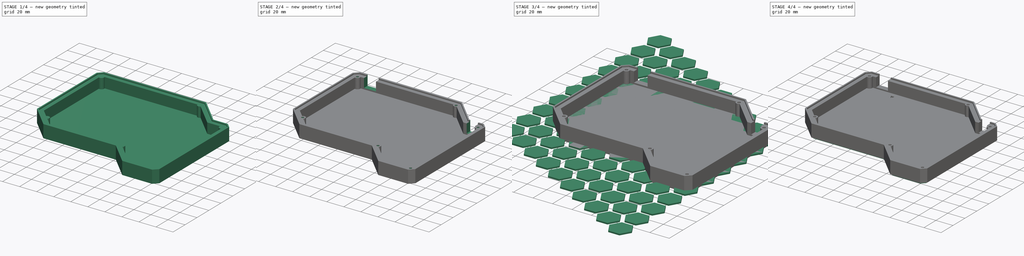
[diagram: build sequence overview — one tinted view per stage of 4, left to right]
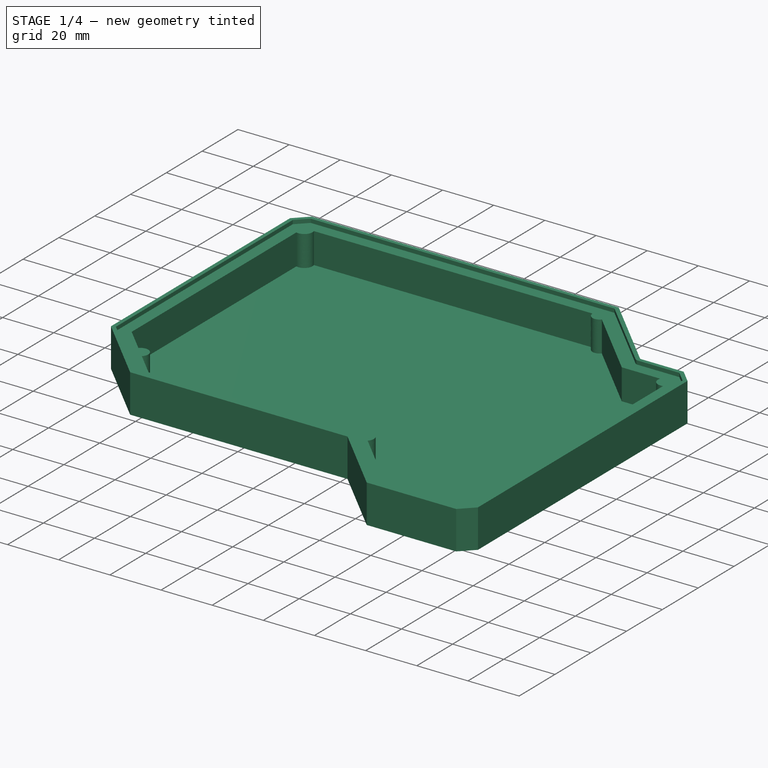
[diagram: stage 1 of 4 — iso view after this stage's code; geometry added in this stage tinted green]
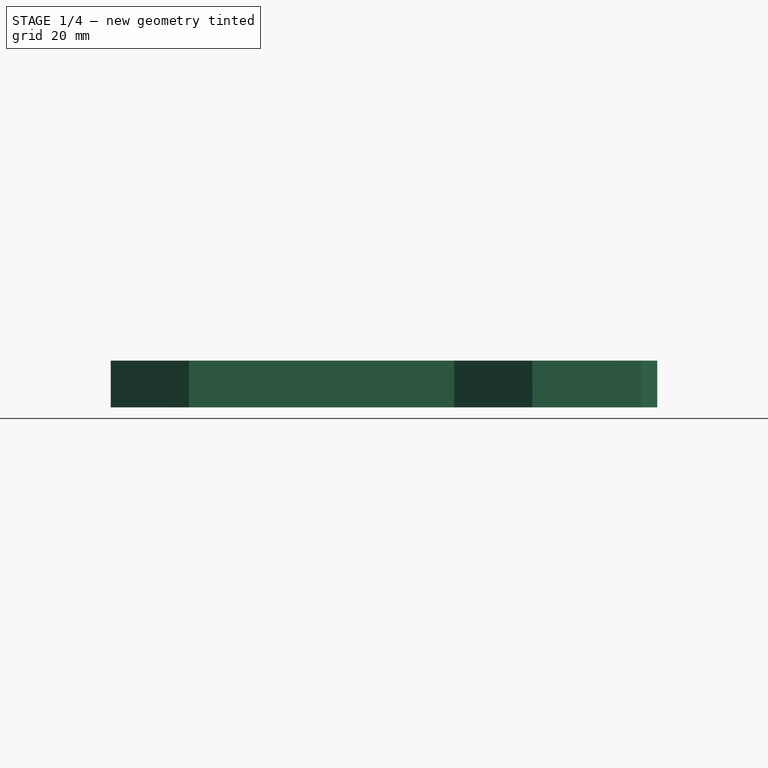
[diagram: stage 1 of 4 — front view after this stage's code; geometry added in this stage tinted green]
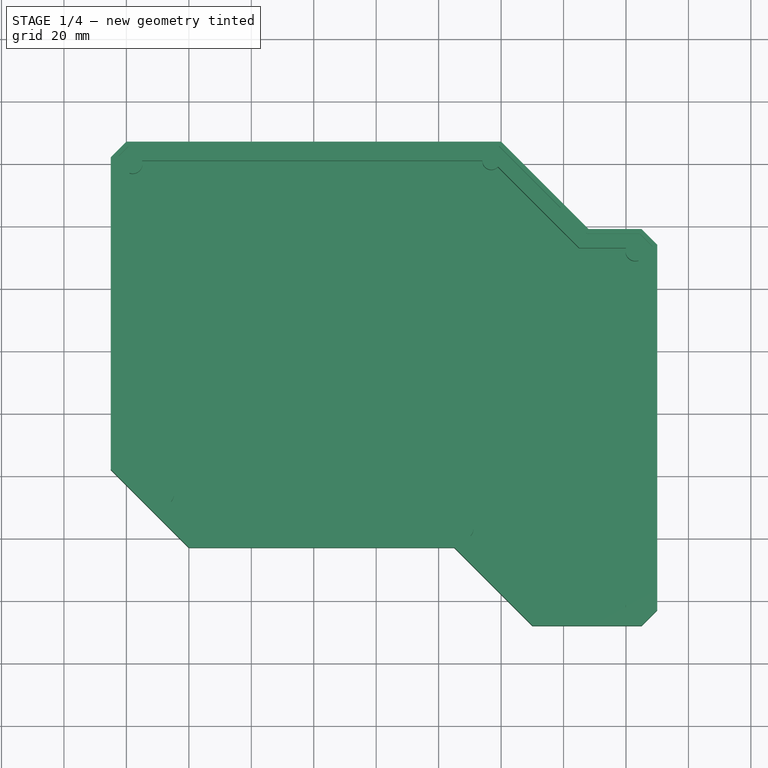
[diagram: stage 1 of 4 — top view after this stage's code; geometry added in this stage tinted green]
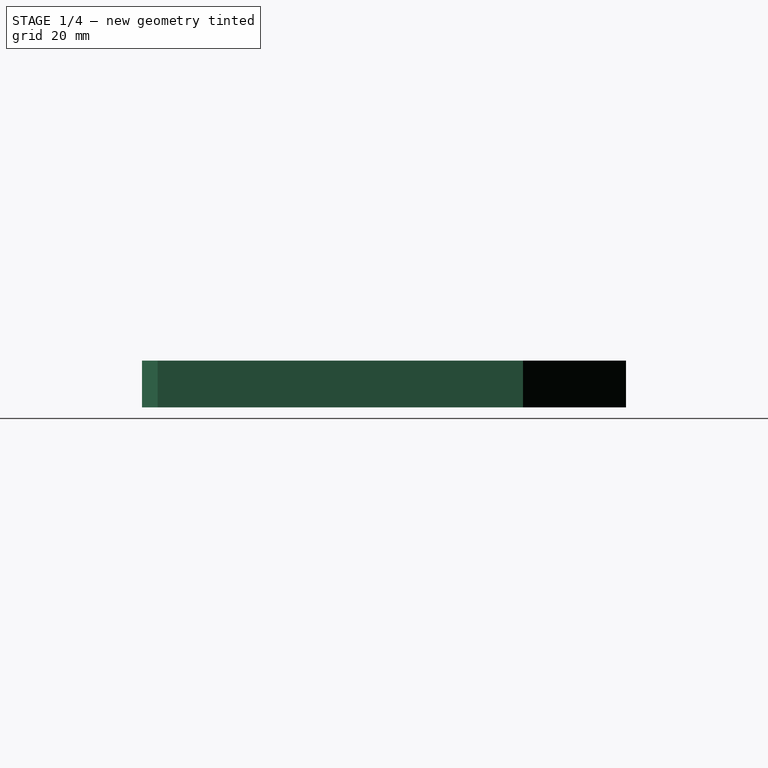
[diagram: stage 1 of 4 — right view after this stage's code; geometry added in this stage tinted green]
FCSTD DOCUMENT  (FreeCAD 0.19R24276 (Git))
Label: revB
License: All rights reserved
LicenseURL: http://en.wikipedia.org/wiki/All_rights_reserved
objects: Sketcher::SketchObject×11, PartDesign::Pocket×7, PartDesign::Pad×3, PartDesign::Body×2, App::Part×2, Part::Extrusion×2, App::DocumentObjectGroup×1, PartDesign::Thickness×1, Part::FeaturePython×1, Part::Cut×1
note: 38 computed .brp shape members not serialized (recipe doc carries the construction recipe); baked Part::Feature solids carry a one-line shape summary decoded from their .brp

FEATURE [PartDesign::Body] Body
  Group = -> [Sketch,Pad,Sketch001,Pocket,Sketch002,Pocket001]
  Origin = -> Origin
  Tip = -> Pocket001
FEATURE [App::Part] Part  label="plate"
  Group = -> [Body]
  Origin = -> Origin001
FEATURE [PartDesign::Pad] Pad001
  Direction = (1,1,1)
  Length = 15
  Length2 = 100
  Profile = -> Sketch003
  Type = 0
FEATURE [PartDesign::Thickness] Thickness
  Base = -> Pad001 [Face14]
  BaseFeature = -> Pad001
  Intersection = false
  Join = 0
  Mode = 0
  Reversed = true
  SupportTransform = false
  Value = 1.5
FEATURE [PartDesign::Pad] Pad002
  BaseFeature = -> Thickness
  Direction = (1,1,1)
  Length = 13.5
  Length2 = 100
  Profile = -> Sketch003
  Type = 0
FEATURE [Sketcher::SketchObject] Sketch004  label="Sketch-inner"
  FullyConstrained = false
  MapMode = 5
  Placement = pos=(0,0,13.5) rot=(0,0,1;0rad)
  Support = -> [Pad002]
  sketch-geometry (16):
    g0: BSplineCurve PolesCount=2 KnotsCount=2 Degree=1 IsPeriodic=0
    g1: BSplineCurve PolesCount=2 KnotsCount=2 Degree=1 IsPeriodic=0
    g2: BSplineCurve PolesCount=2 KnotsCount=2 Degree=1 IsPeriodic=0
    g3: BSplineCurve PolesCount=2 KnotsCount=2 Degree=1 IsPeriodic=0
    g4: BSplineCurve PolesCount=2 KnotsCount=2 Degree=1 IsPeriodic=0
    g5: BSplineCurve PolesCount=2 KnotsCount=2 Degree=1 IsPeriodic=0
    g6: BSplineCurve PolesCount=2 KnotsCount=2 Degree=1 IsPeriodic=0
    g7: BSplineCurve PolesCount=2 KnotsCount=2 Degree=1 IsPeriodic=0
    g8: BSplineCurve PolesCount=2 KnotsCount=2 Degree=1 IsPeriodic=0
    g9: BSplineCurve PolesCount=2 KnotsCount=2 Degree=1 IsPeriodic=0
    g10: BSplineCurve PolesCount=3 KnotsCount=2 Degree=2 IsPeriodic=0
    g11: BSplineCurve PolesCount=3 KnotsCount=2 Degree=2 IsPeriodic=0
    g12: BSplineCurve PolesCount=5 KnotsCount=3 Degree=2 IsPeriodic=0
    g13: BSplineCurve PolesCount=5 KnotsCount=3 Degree=2 IsPeriodic=0
    g14: BSplineCurve PolesCount=3 KnotsCount=2 Degree=2 IsPeriodic=0
    g15: BSplineCurve PolesCount=3 KnotsCount=2 Degree=2 IsPeriodic=0
  constraints (16):
    c: Coincident(g0,g1)
    c: Coincident(g2,g3)
    c: Coincident(g6,g7)
    c: Coincident(g8,g9)
    c: Coincident(g14,g1)
    c: Coincident(g14,g5)
    c: Coincident(g11,g5)
    c: Coincident(g2,g11)
    c: Coincident(g15,g3)
    c: Coincident(g15,g4)
    c: Coincident(g10,g4)
    c: Coincident(g10,g6)
    c: Coincident(g7,g13)
    c: Coincident(g13,g9)
    c: Coincident(g8,g12)
    c: Coincident(g0,g12)
FEATURE [PartDesign::Pocket] Pocket002
  BaseFeature = -> Pad002
  Length = 12
  Length2 = 100
  Profile = -> Sketch004
  Type = 0
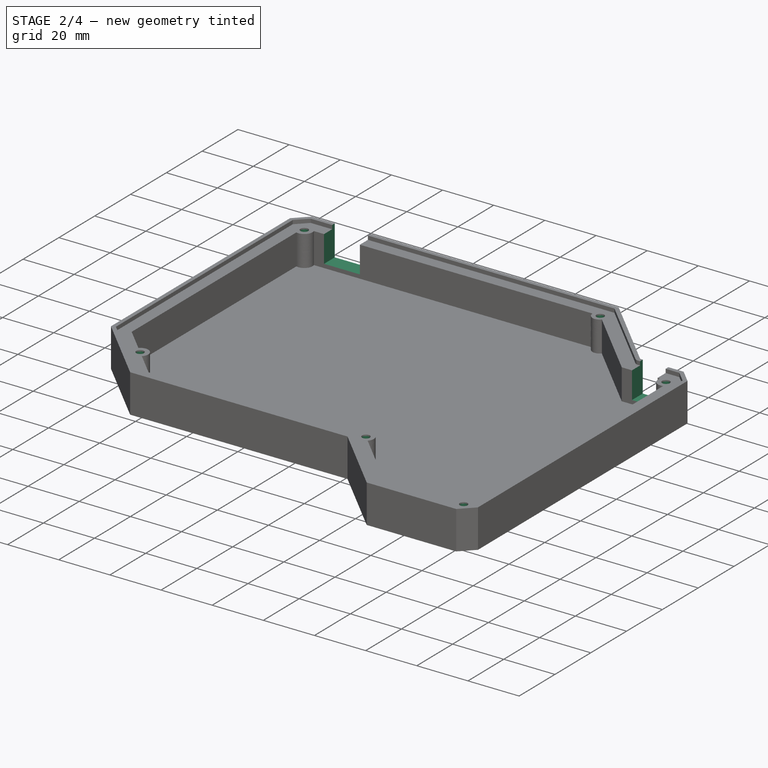
[diagram: stage 2 of 4 — iso view after this stage's code; geometry added in this stage tinted green]
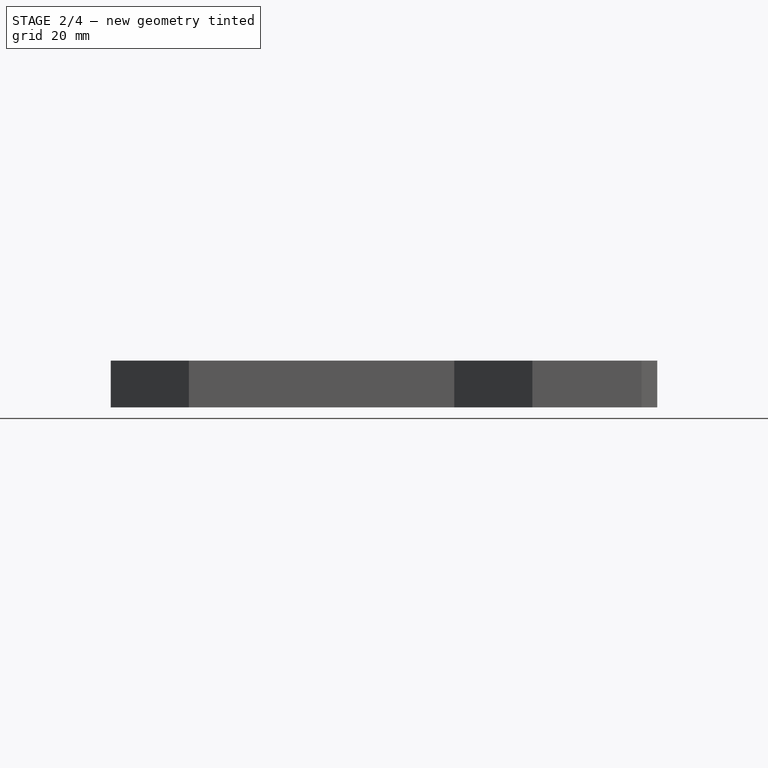
[diagram: stage 2 of 4 — front view after this stage's code; geometry added in this stage tinted green]
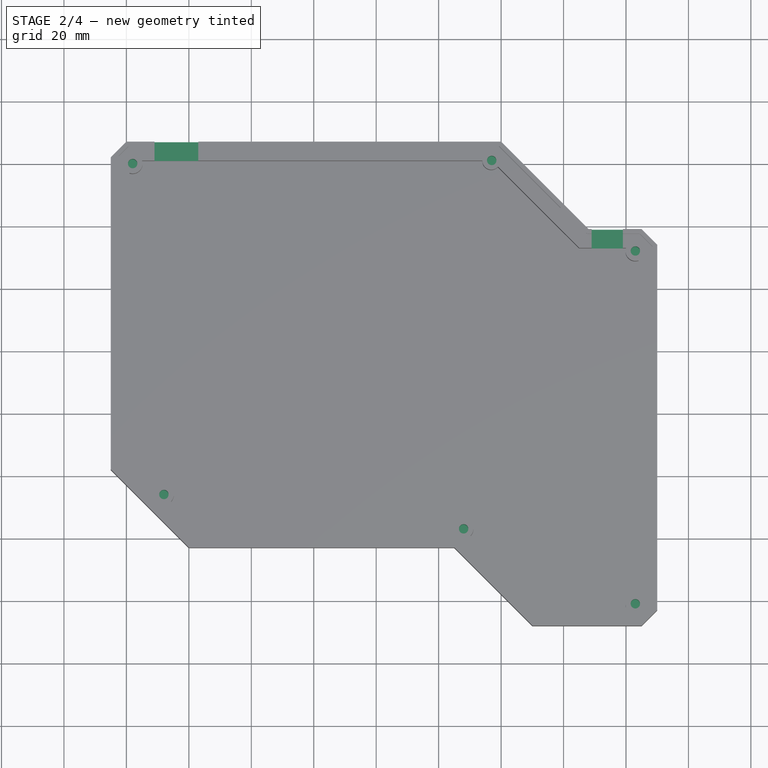
[diagram: stage 2 of 4 — top view after this stage's code; geometry added in this stage tinted green]
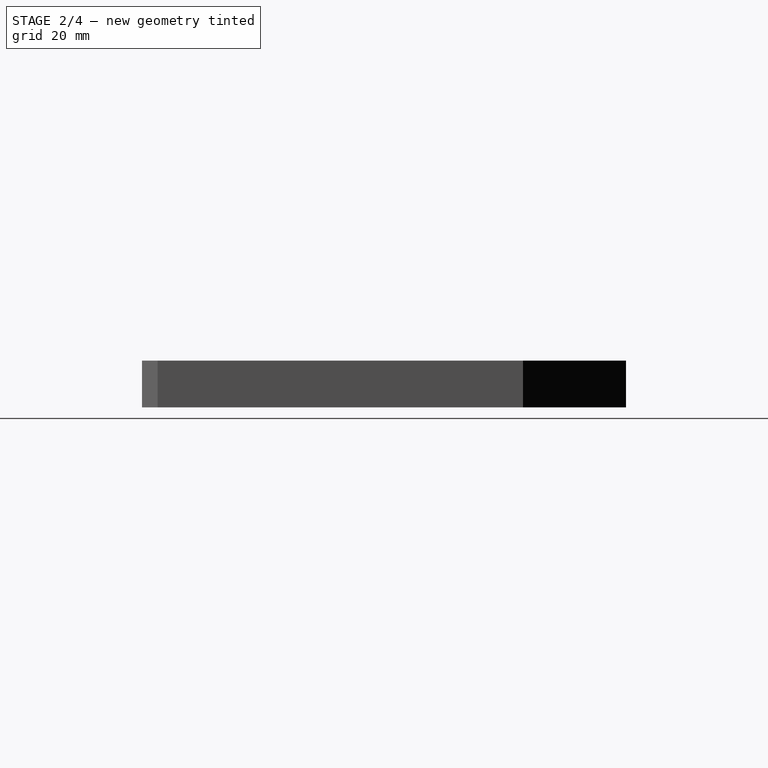
[diagram: stage 2 of 4 — right view after this stage's code; geometry added in this stage tinted green]
FEATURE [Sketcher::SketchObject] Sketch005  label="Sketch-case_sc_hole"
  FullyConstrained = false
  MapMode = 5
  Placement = pos=(0,0,13.5) rot=(0,0,1;0rad)
  Support = -> [Pad002]
  sketch-geometry (6):
    g0: BSplineCurve PolesCount=7 KnotsCount=4 Degree=2 IsPeriodic=0
    g1: BSplineCurve PolesCount=7 KnotsCount=4 Degree=2 IsPeriodic=0
    g2: BSplineCurve PolesCount=7 KnotsCount=4 Degree=2 IsPeriodic=0
    g3: BSplineCurve PolesCount=7 KnotsCount=4 Degree=2 IsPeriodic=0
    g4: BSplineCurve PolesCount=7 KnotsCount=4 Degree=2 IsPeriodic=0
    g5: BSplineCurve PolesCount=7 KnotsCount=4 Degree=2 IsPeriodic=0
FEATURE [PartDesign::Pocket] Pocket003
  BaseFeature = -> Pocket002
  Length = 8
  Length2 = 100
  Profile = -> Sketch005
  Type = 0
FEATURE [Sketcher::SketchObject] Sketch006  label="Sketch-promicro_hole"
  FullyConstrained = false
  Placement = pos=(0,-12,0) rot=(-1,0,0;1.5708rad)
  sketch-geometry (4):
    g0: LineSegment StartX=29 StartY=-3 StartZ=0 EndX=43 EndY=-3 EndZ=0
    g1: LineSegment StartX=43 StartY=-3 StartZ=0 EndX=43 EndY=-15 EndZ=0
    g2: LineSegment StartX=43 StartY=-15 StartZ=0 EndX=29 EndY=-15 EndZ=0
    g3: LineSegment StartX=29 StartY=-15 StartZ=0 EndX=29 EndY=-3 EndZ=0
  constraints (8):
    c: Coincident(g0,g1)
    c: Coincident(g1,g2)
    c: Coincident(g2,g3)
    c: Coincident(g3,g0)
    c: Horizontal(g0)
    c: Horizontal(g2)
    c: Vertical(g1)
    c: Vertical(g3)
FEATURE [PartDesign::Pocket] Pocket004
  BaseFeature = -> Pocket003
  Length = 10
  Length2 = 100
  Profile = -> Sketch006
  Type = 0
FEATURE [Sketcher::SketchObject] Sketch007  label="Sketch-trrs_hole"
  FullyConstrained = false
  Placement = pos=(0,-40,0) rot=(-1,0,0;1.5708rad)
  sketch-geometry (4):
    g0: LineSegment StartX=169 StartY=-3 StartZ=0 EndX=179 EndY=-3 EndZ=0
    g1: LineSegment StartX=179 StartY=-3 StartZ=0 EndX=179 EndY=-15 EndZ=0
    g2: LineSegment StartX=179 StartY=-15 StartZ=0 EndX=169 EndY=-15 EndZ=0
    g3: LineSegment StartX=169 StartY=-15 StartZ=0 EndX=169 EndY=-3 EndZ=0
  constraints (8):
    c: Coincident(g0,g1)
    c: Coincident(g1,g2)
    c: Coincident(g2,g3)
    c: Coincident(g3,g0)
    c: Horizontal(g0)
    c: Horizontal(g2)
    c: Vertical(g1)
    c: Vertical(g3)
FEATURE [PartDesign::Pocket] Pocket005
  BaseFeature = -> Pocket004
  Length = 10
  Length2 = 100
  Profile = -> Sketch007
  Type = 0
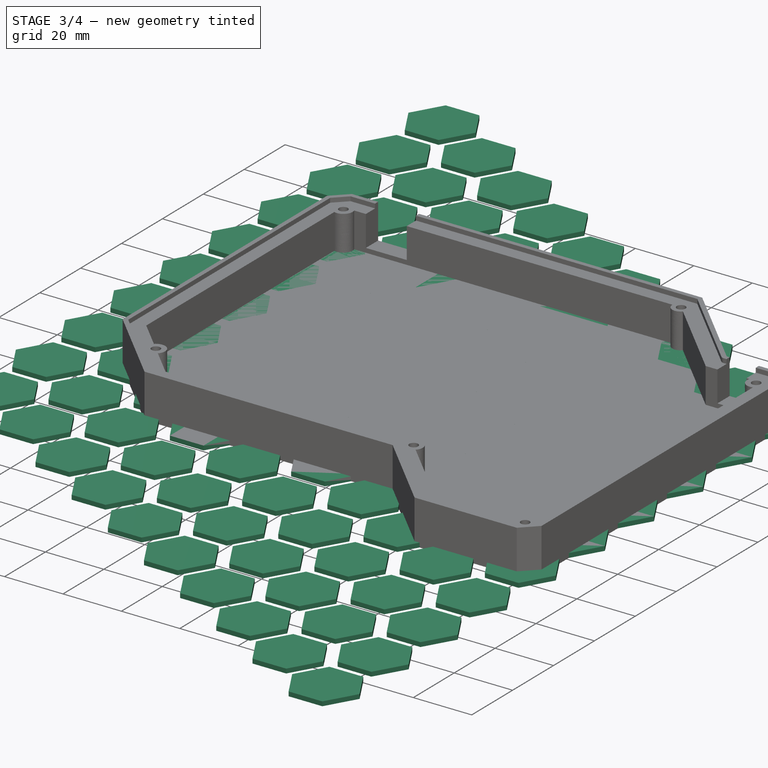
[diagram: stage 3 of 4 — iso view after this stage's code; geometry added in this stage tinted green]
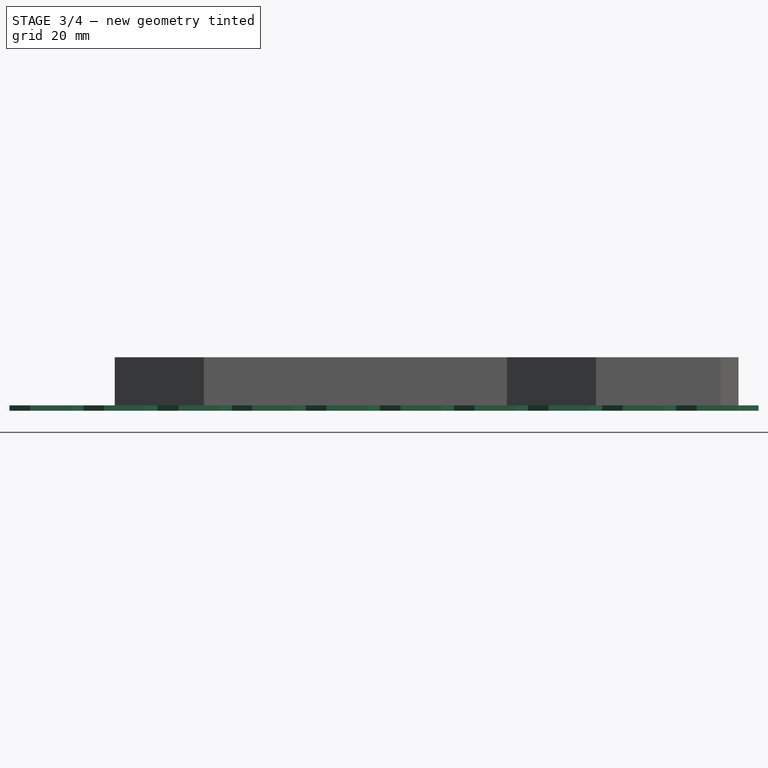
[diagram: stage 3 of 4 — front view after this stage's code; geometry added in this stage tinted green]
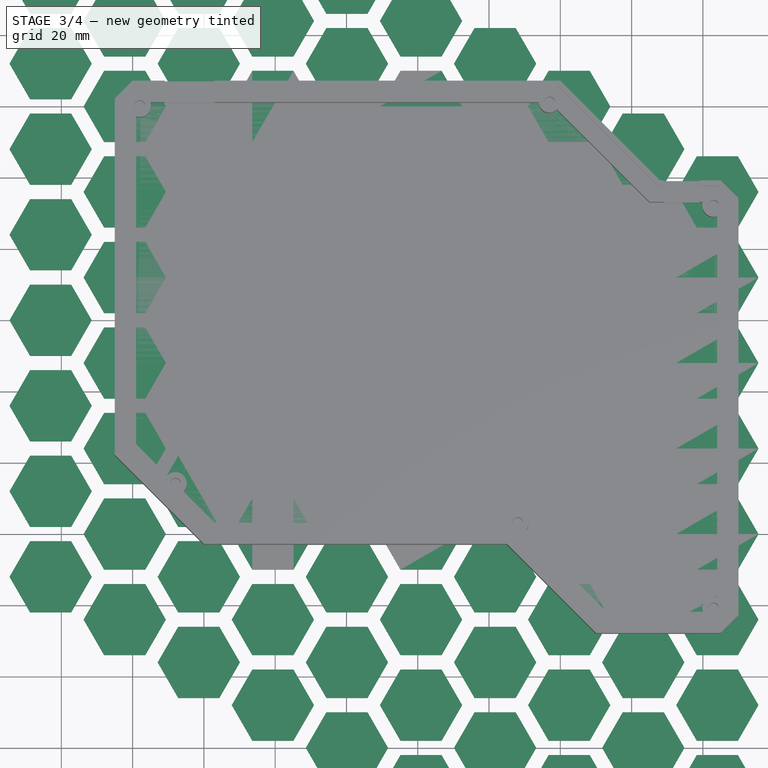
[diagram: stage 3 of 4 — top view after this stage's code; geometry added in this stage tinted green]
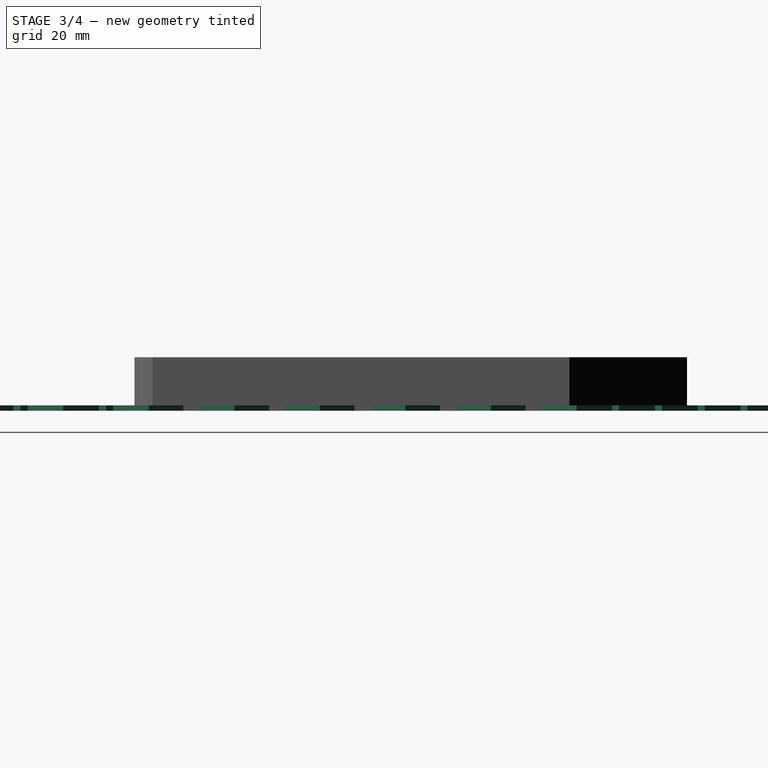
[diagram: stage 3 of 4 — right view after this stage's code; geometry added in this stage tinted green]
FEATURE [Sketcher::SketchObject] Sketch009  label="Sketch-outer001"
  FullyConstrained = false
  MapMode = 5
  sketch-geometry (12):
    g0: BSplineCurve PolesCount=2 KnotsCount=2 Degree=1 IsPeriodic=0
    g1: BSplineCurve PolesCount=2 KnotsCount=2 Degree=1 IsPeriodic=0
    g2: BSplineCurve PolesCount=2 KnotsCount=2 Degree=1 IsPeriodic=0
    g3: BSplineCurve PolesCount=2 KnotsCount=2 Degree=1 IsPeriodic=0
    g4: BSplineCurve PolesCount=2 KnotsCount=2 Degree=1 IsPeriodic=0
    g5: BSplineCurve PolesCount=2 KnotsCount=2 Degree=1 IsPeriodic=0
    g6: BSplineCurve PolesCount=2 KnotsCount=2 Degree=1 IsPeriodic=0
    g7: BSplineCurve PolesCount=2 KnotsCount=2 Degree=1 IsPeriodic=0
    g8: BSplineCurve PolesCount=2 KnotsCount=2 Degree=1 IsPeriodic=0
    g9: BSplineCurve PolesCount=2 KnotsCount=2 Degree=1 IsPeriodic=0
    g10: BSplineCurve PolesCount=2 KnotsCount=2 Degree=1 IsPeriodic=0
    g11: BSplineCurve PolesCount=2 KnotsCount=2 Degree=1 IsPeriodic=0
  constraints (12):
    c: Coincident(g0,g1)
    c: Coincident(g1,g2)
    c: Coincident(g2,g3)
    c: Coincident(g3,g4)
    c: Coincident(g4,g5)
    c: Coincident(g5,g6)
    c: Coincident(g6,g7)
    c: Coincident(g7,g8)
    c: Coincident(g8,g9)
    c: Coincident(g9,g10)
    c: Coincident(g10,g11)
    c: Coincident(g11,g0)
FEATURE [Part::Extrusion] Extrude
  Base = -> Sketch009
  Dir = (0,0,1)
  DirMode = 2
  FaceMakerClass = Part::FaceMakerBullseye
  LengthFwd = 1.5
  LengthRev = 0
  Solid = true
  Symmetric = false
FEATURE [Sketcher::SketchObject] Sketch010  label="Sketch-hex"
  FullyConstrained = false
  MapMode = 5
  sketch-geometry (6):
    g0: LineSegment StartX=5.7735 StartY=-10 StartZ=0 EndX=11.547 EndY=-1.8e-15 EndZ=0
    g1: LineSegment StartX=11.547 StartY=-1.8e-15 StartZ=0 EndX=5.7735 EndY=10 EndZ=0
    g2: LineSegment StartX=5.7735 StartY=10 StartZ=0 EndX=-5.7735 EndY=10 EndZ=0
    g3: LineSegment StartX=-5.7735 StartY=10 StartZ=0 EndX=-11.547 EndY=0 EndZ=0
    g4: LineSegment StartX=-11.547 StartY=0 StartZ=0 EndX=-5.7735 EndY=-10 EndZ=0
    g5: LineSegment StartX=-5.7735 StartY=-10 StartZ=0 EndX=5.7735 EndY=-10 EndZ=0
  constraints (9):
    c: Coincident(g0,g1)
    c: Coincident(g1,g2)
    c: Coincident(g2,g3)
    c: Coincident(g3,g4)
    c: Coincident(g4,g5)
    c: Coincident(g5,g0)
    c: Equal(g0, g1-g5) x5
    c: Horizontal(g2)
    c: Distance(g-1,g5) = 10
FEATURE [Part::FeaturePython] Array001  # Draft array (typed FeaturePython)
  Angle = 360
  ArrayType = 0
  Axis = (0,0,1)
  Base = -> Sketch010
  Center = (0,0,0)
  Count = 100
  ExpandArray = false
  Fuse = false
  IntervalAxis = (0,0,0)
  IntervalX = (20.7845,-12,0)
  IntervalY = (0,24,0)
  IntervalZ = (0,0,100)
  NumberCircles = 3
  NumberPolar = 5
  NumberX = 10
  NumberY = 10
  NumberZ = 1
  Placement = pos=(-3,-152,0) rot=(0,0,1;0rad)
  PlacementList = 100 placements: [(0,0,0),(0,24,0),(0,48,0),(0,72,0),(0,96,0),(0,120,0),(0,144,0),(0,168,0),(0,192,0),(0,216,0),(20.7845,-12,0),(20.7845,12,0),(20.7845,36,0),(20.7845,60,0),(20.7845,84,0),(20.7845,108,0),(20.7845,132,0),(20.7845,156,0),(20.7845,180,0),(20.7845,204,0),(41.569,-24,0),(41.569,0,0),(41.569,24,0),(41.569,48,0),(41.569,72,0),(41.569,96,0),(41.569,120,0),(41.569,144,0),(41.569,168,0),(41.569,192,0),+70 more]
  RadialDistance = 50
  ScaleList = (100) [(1,1,1),(1,1,1),(1,1,1),(1,1,1),(1,1,1),(1,1,1),(1,1,1),(1,1,1),(1,1,1),(1,1,1),(1,1,1),(1,1,1),(1,1,1),(1,1,1),(1,1,1),(1,1,1),(1,1,1),(1,1,1),+82 more]
  Symmetry = 1
  TangentialDistance = 25
FEATURE [Part::Extrusion] Extrude001
  Base = -> Array001
  Dir = (0,0,1)
  DirMode = 2
  FaceMakerClass = Part::FaceMakerBullseye
  LengthFwd = 1.5
  LengthRev = 0
  Solid = true
  Symmetric = false
FEATURE [Sketcher::SketchObject] Sketch011  label="Sketch-reset_hole"
  FullyConstrained = false
  MapMode = 5
  Placement = pos=(0,0,0) rot=(1,0,0;3.14159rad)
  Support = -> [Pocket005]
  sketch-geometry (4):
    g0: LineSegment StartX=48 StartY=24 StartZ=0 EndX=54 EndY=24 EndZ=0
    g1: LineSegment StartX=54 StartY=24 StartZ=0 EndX=54 EndY=28 EndZ=0
    g2: LineSegment StartX=54 StartY=28 StartZ=0 EndX=48 EndY=28 EndZ=0
    g3: LineSegment StartX=48 StartY=28 StartZ=0 EndX=48 EndY=24 EndZ=0
  constraints (8):
    c: Coincident(g0,g1)
    c: Coincident(g1,g2)
    c: Coincident(g2,g3)
    c: Coincident(g3,g0)
    c: Horizontal(g0)
    c: Horizontal(g2)
    c: Vertical(g1)
    c: Vertical(g3)
FEATURE [PartDesign::Pocket] Pocket006
  BaseFeature = -> Pocket005
  Length = 5
  Length2 = 100
  Profile = -> Sketch011
  Type = 1
FEATURE [PartDesign::Body] Body001
  Group = -> [Sketch003,Pad001,Thickness,Pad002,Sketch004,Pocket002,Sketch005,Pocket003,Sketch006,Pocket004,Sketch007,Pocket005,Sketch011,Pocket006]
  Origin = -> Origin003
  Tip = -> Pocket006
FEATURE [App::Part] Part001  label="case"
  Group = -> [Body001,Sketch009,Extrude,Sketch010,Array001,Extrude001,Cut]
  Origin = -> Origin002
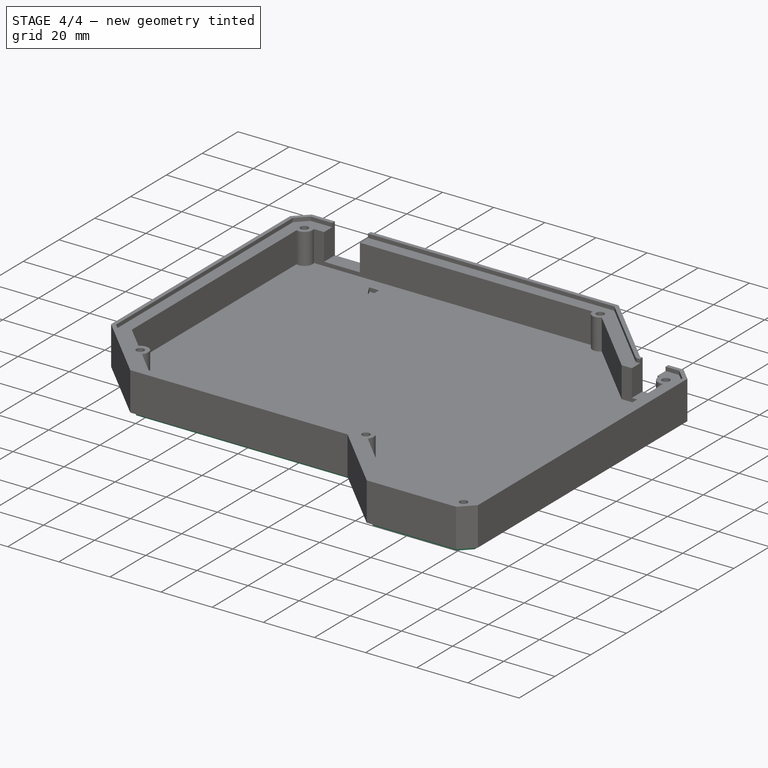
[diagram: stage 4 of 4 — iso view after this stage's code; geometry added in this stage tinted green]
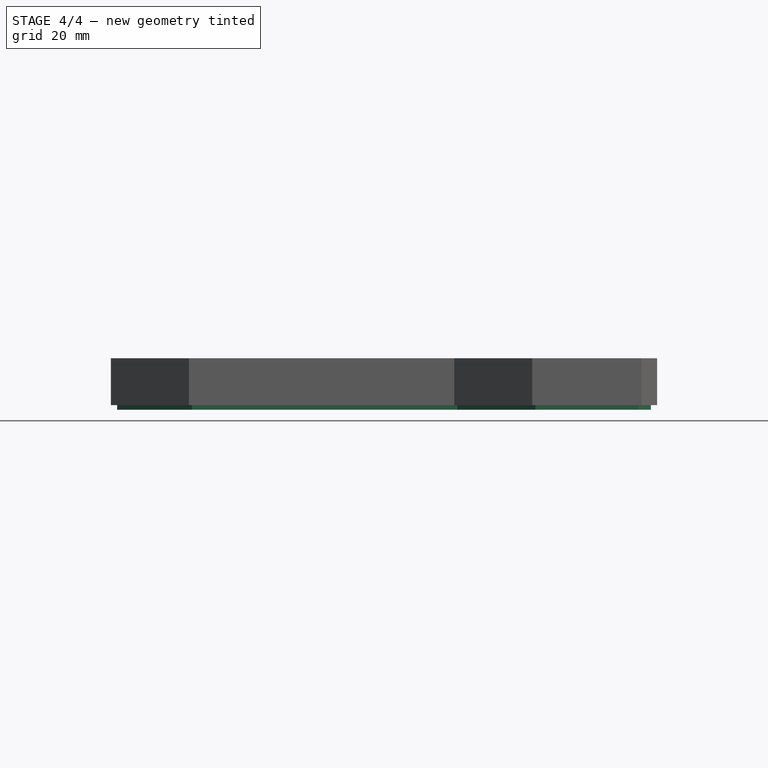
[diagram: stage 4 of 4 — front view after this stage's code; geometry added in this stage tinted green]
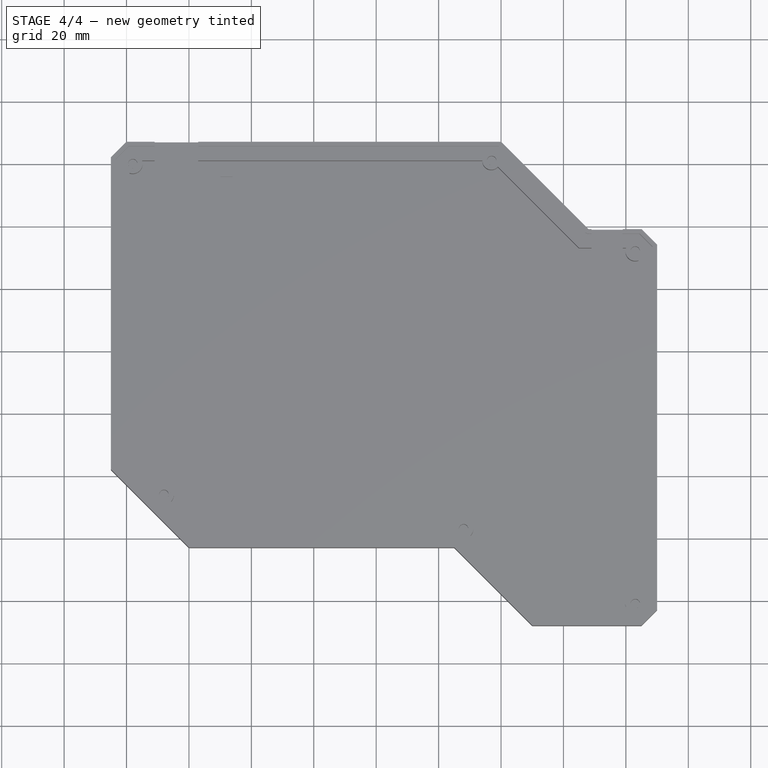
[diagram: stage 4 of 4 — top view after this stage's code; geometry added in this stage tinted green]
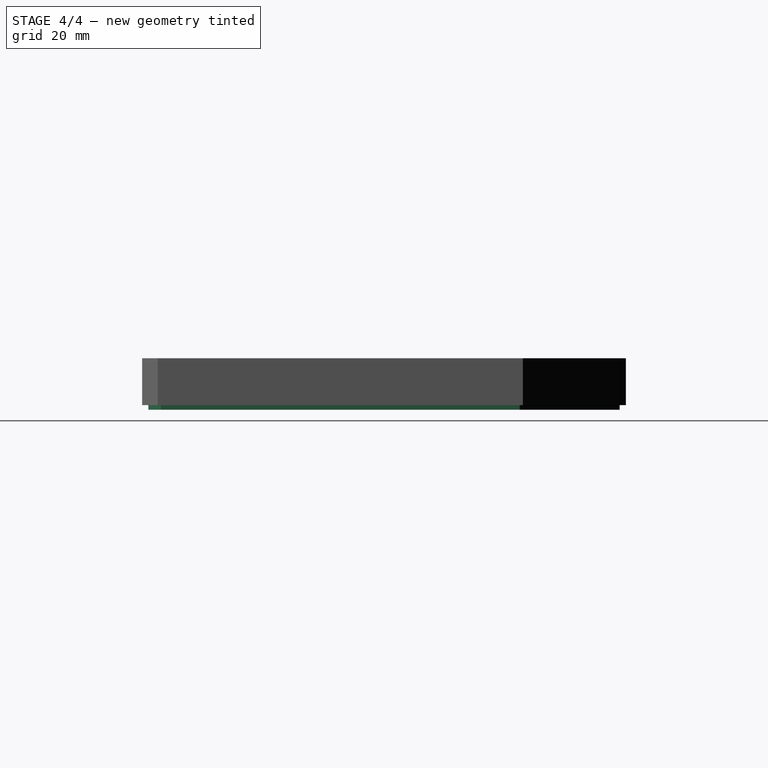
[diagram: stage 4 of 4 — right view after this stage's code; geometry added in this stage tinted green]
FEATURE [App::DocumentObjectGroup] ____________  label="svg"
FEATURE [Sketcher::SketchObject] Sketch  label="Sketch-plate"
  FullyConstrained = false
  sketch-geometry (12):
    g0: BSplineCurve PolesCount=2 KnotsCount=2 Degree=1 IsPeriodic=0
    g1: BSplineCurve PolesCount=2 KnotsCount=2 Degree=1 IsPeriodic=0
    g2: BSplineCurve PolesCount=2 KnotsCount=2 Degree=1 IsPeriodic=0
    g3: BSplineCurve PolesCount=2 KnotsCount=2 Degree=1 IsPeriodic=0
    g4: BSplineCurve PolesCount=2 KnotsCount=2 Degree=1 IsPeriodic=0
    g5: BSplineCurve PolesCount=2 KnotsCount=2 Degree=1 IsPeriodic=0
    g6: BSplineCurve PolesCount=2 KnotsCount=2 Degree=1 IsPeriodic=0
    g7: BSplineCurve PolesCount=2 KnotsCount=2 Degree=1 IsPeriodic=0
    g8: BSplineCurve PolesCount=2 KnotsCount=2 Degree=1 IsPeriodic=0
    g9: BSplineCurve PolesCount=2 KnotsCount=2 Degree=1 IsPeriodic=0
    g10: BSplineCurve PolesCount=2 KnotsCount=2 Degree=1 IsPeriodic=0
    g11: BSplineCurve PolesCount=2 KnotsCount=2 Degree=1 IsPeriodic=0
  constraints (12):
    c: Coincident(g0,g1)
    c: Coincident(g1,g2)
    c: Coincident(g2,g3)
    c: Coincident(g3,g4)
    c: Coincident(g4,g5)
    c: Coincident(g5,g6)
    c: Coincident(g6,g7)
    c: Coincident(g7,g8)
    c: Coincident(g8,g9)
    c: Coincident(g9,g10)
    c: Coincident(g10,g11)
    c: Coincident(g11,g0)
FEATURE [Sketcher::SketchObject] Sketch001  label="Sketch-sw_hole"
  FullyConstrained = false
  sketch-geometry (116):
    g0: BSplineCurve PolesCount=2 KnotsCount=2 Degree=1 IsPeriodic=0
    g1: BSplineCurve PolesCount=2 KnotsCount=2 Degree=1 IsPeriodic=0
    g2: BSplineCurve PolesCount=2 KnotsCount=2 Degree=1 IsPeriodic=0
    g3: BSplineCurve PolesCount=2 KnotsCount=2 Degree=1 IsPeriodic=0
    g4: BSplineCurve PolesCount=2 KnotsCount=2 Degree=1 IsPeriodic=0
    g5: BSplineCurve PolesCount=2 KnotsCount=2 Degree=1 IsPeriodic=0
    g6: BSplineCurve PolesCount=2 KnotsCount=2 Degree=1 IsPeriodic=0
    g7: BSplineCurve PolesCount=2 KnotsCount=2 Degree=1 IsPeriodic=0
    g8: BSplineCurve PolesCount=2 KnotsCount=2 Degree=1 IsPeriodic=0
    g9: BSplineCurve PolesCount=2 KnotsCount=2 Degree=1 IsPeriodic=0
    g10: BSplineCurve PolesCount=2 KnotsCount=2 Degree=1 IsPeriodic=0
    g11: BSplineCurve PolesCount=2 KnotsCount=2 Degree=1 IsPeriodic=0
    g12: BSplineCurve PolesCount=2 KnotsCount=2 Degree=1 IsPeriodic=0
    g13: BSplineCurve PolesCount=2 KnotsCount=2 Degree=1 IsPeriodic=0
    g14: BSplineCurve PolesCount=2 KnotsCount=2 Degree=1 IsPeriodic=0
    g15: BSplineCurve PolesCount=2 KnotsCount=2 Degree=1 IsPeriodic=0
    g16: BSplineCurve PolesCount=2 KnotsCount=2 Degree=1 IsPeriodic=0
    g17: BSplineCurve PolesCount=2 KnotsCount=2 Degree=1 IsPeriodic=0
    g18: BSplineCurve PolesCount=2 KnotsCount=2 Degree=1 IsPeriodic=0
    g19: BSplineCurve PolesCount=2 KnotsCount=2 Degree=1 IsPeriodic=0
    g20: BSplineCurve PolesCount=2 KnotsCount=2 Degree=1 IsPeriodic=0
    g21: BSplineCurve PolesCount=2 KnotsCount=2 Degree=1 IsPeriodic=0
    g22: BSplineCurve PolesCount=2 KnotsCount=2 Degree=1 IsPeriodic=0
    g23: BSplineCurve PolesCount=2 KnotsCount=2 Degree=1 IsPeriodic=0
    g24: BSplineCurve PolesCount=2 KnotsCount=2 Degree=1 IsPeriodic=0
    g25: BSplineCurve PolesCount=2 KnotsCount=2 Degree=1 IsPeriodic=0
    g26: BSplineCurve PolesCount=2 KnotsCount=2 Degree=1 IsPeriodic=0
    g27: BSplineCurve PolesCount=2 KnotsCount=2 Degree=1 IsPeriodic=0
    g28: BSplineCurve PolesCount=2 KnotsCount=2 Degree=1 IsPeriodic=0
    g29: BSplineCurve PolesCount=2 KnotsCount=2 Degree=1 IsPeriodic=0
    g30: BSplineCurve PolesCount=2 KnotsCount=2 Degree=1 IsPeriodic=0
    g31: BSplineCurve PolesCount=2 KnotsCount=2 Degree=1 IsPeriodic=0
    g32: BSplineCurve PolesCount=2 KnotsCount=2 Degree=1 IsPeriodic=0
    g33: BSplineCurve PolesCount=2 KnotsCount=2 Degree=1 IsPeriodic=0
    g34: BSplineCurve PolesCount=2 KnotsCount=2 Degree=1 IsPeriodic=0
    g35: BSplineCurve PolesCount=2 KnotsCount=2 Degree=1 IsPeriodic=0
    g36: BSplineCurve PolesCount=2 KnotsCount=2 Degree=1 IsPeriodic=0
    g37: BSplineCurve PolesCount=2 KnotsCount=2 Degree=1 IsPeriodic=0
    g38: BSplineCurve PolesCount=2 KnotsCount=2 Degree=1 IsPeriodic=0
    g39: BSplineCurve PolesCount=2 KnotsCount=2 Degree=1 IsPeriodic=0
    g40: BSplineCurve PolesCount=2 KnotsCount=2 Degree=1 IsPeriodic=0
    g41: BSplineCurve PolesCount=2 KnotsCount=2 Degree=1 IsPeriodic=0
    g42: BSplineCurve PolesCount=2 KnotsCount=2 Degree=1 IsPeriodic=0
    g43: BSplineCurve PolesCount=2 KnotsCount=2 Degree=1 IsPeriodic=0
    g44: BSplineCurve PolesCount=2 KnotsCount=2 Degree=1 IsPeriodic=0
    g45: BSplineCurve PolesCount=2 KnotsCount=2 Degree=1 IsPeriodic=0
    g46: BSplineCurve PolesCount=2 KnotsCount=2 Degree=1 IsPeriodic=0
    g47: BSplineCurve PolesCount=2 KnotsCount=2 Degree=1 IsPeriodic=0
    g48: BSplineCurve PolesCount=2 KnotsCount=2 Degree=1 IsPeriodic=0
    g49: BSplineCurve PolesCount=2 KnotsCount=2 Degree=1 IsPeriodic=0
    g50: BSplineCurve PolesCount=2 KnotsCount=2 Degree=1 IsPeriodic=0
    g51: BSplineCurve PolesCount=2 KnotsCount=2 Degree=1 IsPeriodic=0
    g52: BSplineCurve PolesCount=2 KnotsCount=2 Degree=1 IsPeriodic=0
    g53: BSplineCurve PolesCount=2 KnotsCount=2 Degree=1 IsPeriodic=0
    g54: BSplineCurve PolesCount=2 KnotsCount=2 Degree=1 IsPeriodic=0
    g55: BSplineCurve PolesCount=2 KnotsCount=2 Degree=1 IsPeriodic=0
    g56: BSplineCurve PolesCount=2 KnotsCount=2 Degree=1 IsPeriodic=0
    g57: BSplineCurve PolesCount=2 KnotsCount=2 Degree=1 IsPeriodic=0
    g58: BSplineCurve PolesCount=2 KnotsCount=2 Degree=1 IsPeriodic=0
    g59: BSplineCurve PolesCount=2 KnotsCount=2 Degree=1 IsPeriodic=0
    g60: BSplineCurve PolesCount=2 KnotsCount=2 Degree=1 IsPeriodic=0
    g61: BSplineCurve PolesCount=2 KnotsCount=2 Degree=1 IsPeriodic=0
    g62: BSplineCurve PolesCount=2 KnotsCount=2 Degree=1 IsPeriodic=0
    g63: BSplineCurve PolesCount=2 KnotsCount=2 Degree=1 IsPeriodic=0
    g64: BSplineCurve PolesCount=2 KnotsCount=2 Degree=1 IsPeriodic=0
    g65: BSplineCurve PolesCount=2 KnotsCount=2 Degree=1 IsPeriodic=0
    g66: BSplineCurve PolesCount=2 KnotsCount=2 Degree=1 IsPeriodic=0
    g67: BSplineCurve PolesCount=2 KnotsCount=2 Degree=1 IsPeriodic=0
    g68: BSplineCurve PolesCount=2 KnotsCount=2 Degree=1 IsPeriodic=0
    g69: BSplineCurve PolesCount=2 KnotsCount=2 Degree=1 IsPeriodic=0
    g70: BSplineCurve PolesCount=2 KnotsCount=2 Degree=1 IsPeriodic=0
    g71: BSplineCurve PolesCount=2 KnotsCount=2 Degree=1 IsPeriodic=0
    g72: BSplineCurve PolesCount=2 KnotsCount=2 Degree=1 IsPeriodic=0
    g73: BSplineCurve PolesCount=2 KnotsCount=2 Degree=1 IsPeriodic=0
    g74: BSplineCurve PolesCount=2 KnotsCount=2 Degree=1 IsPeriodic=0
    g75: BSplineCurve PolesCount=2 KnotsCount=2 Degree=1 IsPeriodic=0
    g76: BSplineCurve PolesCount=2 KnotsCount=2 Degree=1 IsPeriodic=0
    g77: BSplineCurve PolesCount=2 KnotsCount=2 Degree=1 IsPeriodic=0
    g78: BSplineCurve PolesCount=2 KnotsCount=2 Degree=1 IsPeriodic=0
    g79: BSplineCurve PolesCount=2 KnotsCount=2 Degree=1 IsPeriodic=0
    g80: BSplineCurve PolesCount=2 KnotsCount=2 Degree=1 IsPeriodic=0
    g81: BSplineCurve PolesCount=2 KnotsCount=2 Degree=1 IsPeriodic=0
    g82: BSplineCurve PolesCount=2 KnotsCount=2 Degree=1 IsPeriodic=0
    g83: BSplineCurve PolesCount=2 KnotsCount=2 Degree=1 IsPeriodic=0
    g84: BSplineCurve PolesCount=2 KnotsCount=2 Degree=1 IsPeriodic=0
    g85: BSplineCurve PolesCount=2 KnotsCount=2 Degree=1 IsPeriodic=0
    g86: BSplineCurve PolesCount=2 KnotsCount=2 Degree=1 IsPeriodic=0
    g87: BSplineCurve PolesCount=2 KnotsCount=2 Degree=1 IsPeriodic=0
    g88: BSplineCurve PolesCount=2 KnotsCount=2 Degree=1 IsPeriodic=0
    g89: BSplineCurve PolesCount=2 KnotsCount=2 Degree=1 IsPeriodic=0
    g90: BSplineCurve PolesCount=2 KnotsCount=2 Degree=1 IsPeriodic=0
    g91: BSplineCurve PolesCount=2 KnotsCount=2 Degree=1 IsPeriodic=0
    g92: BSplineCurve PolesCount=2 KnotsCount=2 Degree=1 IsPeriodic=0
    g93: BSplineCurve PolesCount=2 KnotsCount=2 Degree=1 IsPeriodic=0
    g94: BSplineCurve PolesCount=2 KnotsCount=2 Degree=1 IsPeriodic=0
    g95: BSplineCurve PolesCount=2 KnotsCount=2 Degree=1 IsPeriodic=0
    g96: BSplineCurve PolesCount=2 KnotsCount=2 Degree=1 IsPeriodic=0
    g97: BSplineCurve PolesCount=2 KnotsCount=2 Degree=1 IsPeriodic=0
    g98: BSplineCurve PolesCount=2 KnotsCount=2 Degree=1 IsPeriodic=0
    g99: BSplineCurve PolesCount=2 KnotsCount=2 Degree=1 IsPeriodic=0
    g100: BSplineCurve PolesCount=2 KnotsCount=2 Degree=1 IsPeriodic=0
    g101: BSplineCurve PolesCount=2 KnotsCount=2 Degree=1 IsPeriodic=0
    g102: BSplineCurve PolesCount=2 KnotsCount=2 Degree=1 IsPeriodic=0
    g103: BSplineCurve PolesCount=2 KnotsCount=2 Degree=1 IsPeriodic=0
    g104: BSplineCurve PolesCount=2 KnotsCount=2 Degree=1 IsPeriodic=0
    g105: BSplineCurve PolesCount=2 KnotsCount=2 Degree=1 IsPeriodic=0
    g106: BSplineCurve PolesCount=2 KnotsCount=2 Degree=1 IsPeriodic=0
    g107: BSplineCurve PolesCount=2 KnotsCount=2 Degree=1 IsPeriodic=0
    g108: BSplineCurve PolesCount=2 KnotsCount=2 Degree=1 IsPeriodic=0
    g109: BSplineCurve PolesCount=2 KnotsCount=2 Degree=1 IsPeriodic=0
    g110: BSplineCurve PolesCount=2 KnotsCount=2 Degree=1 IsPeriodic=0
    g111: BSplineCurve PolesCount=2 KnotsCount=2 Degree=1 IsPeriodic=0
    g112: BSplineCurve PolesCount=2 KnotsCount=2 Degree=1 IsPeriodic=0
    g113: BSplineCurve PolesCount=2 KnotsCount=2 Degree=1 IsPeriodic=0
    g114: BSplineCurve PolesCount=2 KnotsCount=2 Degree=1 IsPeriodic=0
    g115: BSplineCurve PolesCount=2 KnotsCount=2 Degree=1 IsPeriodic=0
  constraints (116):
    c: Coincident(g0,g1)
    c: Coincident(g1,g2)
    c: Coincident(g2,g3)
    c: Coincident(g3,g0)
    c: Coincident(g4,g5)
    c: Coincident(g5,g6)
    c: Coincident(g6,g7)
    c: Coincident(g7,g4)
    c: Coincident(g8,g9)
    c: Coincident(g9,g10)
    c: Coincident(g10,g11)
    c: Coincident(g11,g8)
    c: Coincident(g12,g13)
    c: Coincident(g13,g14)
    c: Coincident(g14,g15)
    c: Coincident(g15,g12)
    c: Coincident(g16,g17)
    c: Coincident(g17,g18)
    c: Coincident(g18,g19)
    c: Coincident(g19,g16)
    c: Coincident(g20,g21)
    c: Coincident(g21,g22)
    c: Coincident(g22,g23)
    c: Coincident(g23,g20)
    c: Coincident(g24,g25)
    c: Coincident(g25,g26)
    c: Coincident(g26,g27)
    c: Coincident(g27,g24)
    c: Coincident(g28,g29)
    c: Coincident(g29,g30)
    c: Coincident(g30,g31)
    c: Coincident(g31,g28)
    c: Coincident(g32,g33)
    c: Coincident(g33,g34)
    c: Coincident(g34,g35)
    c: Coincident(g35,g32)
    c: Coincident(g36,g37)
    c: Coincident(g37,g38)
    c: Coincident(g38,g39)
    c: Coincident(g39,g36)
    c: Coincident(g40,g41)
    c: Coincident(g41,g42)
    c: Coincident(g42,g43)
    c: Coincident(g43,g40)
    c: Coincident(g44,g45)
    c: Coincident(g45,g46)
    c: Coincident(g46,g47)
    c: Coincident(g47,g44)
    c: Coincident(g48,g49)
    c: Coincident(g49,g50)
    c: Coincident(g50,g51)
    c: Coincident(g51,g48)
    c: Coincident(g52,g53)
    c: Coincident(g53,g54)
    c: Coincident(g54,g55)
    c: Coincident(g55,g52)
    c: Coincident(g56,g57)
    c: Coincident(g57,g58)
    c: Coincident(g58,g59)
    c: Coincident(g59,g56)
    c: Coincident(g60,g61)
    c: Coincident(g61,g62)
    c: Coincident(g62,g63)
    c: Coincident(g63,g60)
    c: Coincident(g64,g65)
    c: Coincident(g65,g66)
    c: Coincident(g66,g67)
    c: Coincident(g67,g64)
    c: Coincident(g68,g69)
    c: Coincident(g69,g70)
    c: Coincident(g70,g71)
    c: Coincident(g71,g68)
    c: Coincident(g72,g73)
    c: Coincident(g73,g74)
    c: Coincident(g74,g75)
    c: Coincident(g75,g72)
    c: Coincident(g76,g77)
    c: Coincident(g77,g78)
    c: Coincident(g78,g79)
    c: Coincident(g79,g76)
    c: Coincident(g80,g81)
    c: Coincident(g81,g82)
    c: Coincident(g82,g83)
    c: Coincident(g83,g80)
    c: Coincident(g84,g85)
    c: Coincident(g85,g86)
    c: Coincident(g86,g87)
    c: Coincident(g87,g84)
    c: Coincident(g88,g89)
    c: Coincident(g89,g90)
    c: Coincident(g90,g91)
    c: Coincident(g91,g88)
    c: Coincident(g92,g93)
    c: Coincident(g93,g94)
    c: Coincident(g94,g95)
    c: Coincident(g95,g92)
    c: Coincident(g96,g97)
    c: Coincident(g97,g98)
    c: Coincident(g98,g99)
    c: Coincident(g99,g96)
    c: Coincident(g100,g101)
    c: Coincident(g101,g102)
    c: Coincident(g102,g103)
    c: Coincident(g103,g100)
    c: Coincident(g104,g105)
    c: Coincident(g105,g106)
    c: Coincident(g106,g107)
    c: Coincident(g107,g104)
    c: Coincident(g108,g109)
    c: Coincident(g109,g110)
    c: Coincident(g110,g111)
    c: Coincident(g111,g108)
    c: Coincident(g112,g113)
    c: Coincident(g113,g114)
    c: Coincident(g114,g115)
    c: Coincident(g115,g112)
FEATURE [Sketcher::SketchObject] Sketch002  label="Sketch-sc_hole"
  FullyConstrained = false
  sketch-geometry (6):
    g0: BSplineCurve PolesCount=7 KnotsCount=4 Degree=2 IsPeriodic=0
    g1: BSplineCurve PolesCount=7 KnotsCount=4 Degree=2 IsPeriodic=0
    g2: BSplineCurve PolesCount=7 KnotsCount=4 Degree=2 IsPeriodic=0
    g3: BSplineCurve PolesCount=7 KnotsCount=4 Degree=2 IsPeriodic=0
    g4: BSplineCurve PolesCount=7 KnotsCount=4 Degree=2 IsPeriodic=0
    g5: BSplineCurve PolesCount=7 KnotsCount=4 Degree=2 IsPeriodic=0
FEATURE [Sketcher::SketchObject] Sketch003  label="Sketch-outer"
  FullyConstrained = false
  MapMode = 5
  Support = -> [XY_Plane003]
  sketch-geometry (12):
    g0: BSplineCurve PolesCount=2 KnotsCount=2 Degree=1 IsPeriodic=0
    g1: BSplineCurve PolesCount=2 KnotsCount=2 Degree=1 IsPeriodic=0
    g2: BSplineCurve PolesCount=2 KnotsCount=2 Degree=1 IsPeriodic=0
    g3: BSplineCurve PolesCount=2 KnotsCount=2 Degree=1 IsPeriodic=0
    g4: BSplineCurve PolesCount=2 KnotsCount=2 Degree=1 IsPeriodic=0
    g5: BSplineCurve PolesCount=2 KnotsCount=2 Degree=1 IsPeriodic=0
    g6: BSplineCurve PolesCount=2 KnotsCount=2 Degree=1 IsPeriodic=0
    g7: BSplineCurve PolesCount=2 KnotsCount=2 Degree=1 IsPeriodic=0
    g8: BSplineCurve PolesCount=2 KnotsCount=2 Degree=1 IsPeriodic=0
    g9: BSplineCurve PolesCount=2 KnotsCount=2 Degree=1 IsPeriodic=0
    g10: BSplineCurve PolesCount=2 KnotsCount=2 Degree=1 IsPeriodic=0
    g11: BSplineCurve PolesCount=2 KnotsCount=2 Degree=1 IsPeriodic=0
  constraints (12):
    c: Coincident(g0,g1)
    c: Coincident(g1,g2)
    c: Coincident(g2,g3)
    c: Coincident(g3,g4)
    c: Coincident(g4,g5)
    c: Coincident(g5,g6)
    c: Coincident(g6,g7)
    c: Coincident(g7,g8)
    c: Coincident(g8,g9)
    c: Coincident(g9,g10)
    c: Coincident(g10,g11)
    c: Coincident(g11,g0)
FEATURE [PartDesign::Pad] Pad
  Direction = (1,1,1)
  Length = 1.5
  Length2 = 100
  Profile = -> Sketch
  Reversed = true
  Type = 0
FEATURE [PartDesign::Pocket] Pocket
  BaseFeature = -> Pad
  Length = 5
  Length2 = 100
  Profile = -> Sketch001
  Type = 1
FEATURE [PartDesign::Pocket] Pocket001
  BaseFeature = -> Pocket
  Length = 5
  Length2 = 100
  Profile = -> Sketch002
  Type = 1
FEATURE [Part::Cut] Cut
  Base = -> Extrude
  Tool = -> Extrude001
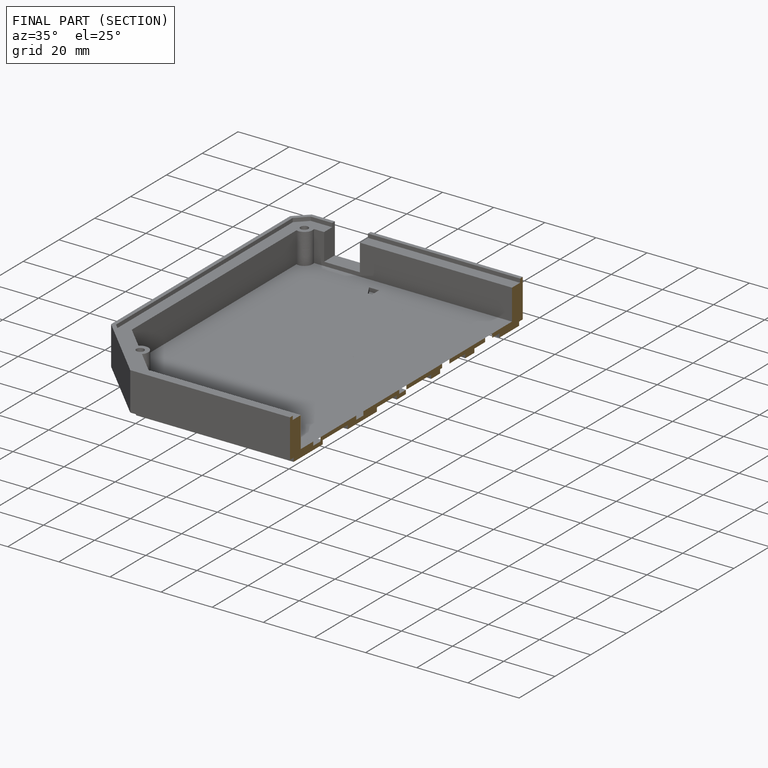
[diagram: finished part — half-section view (interior)]
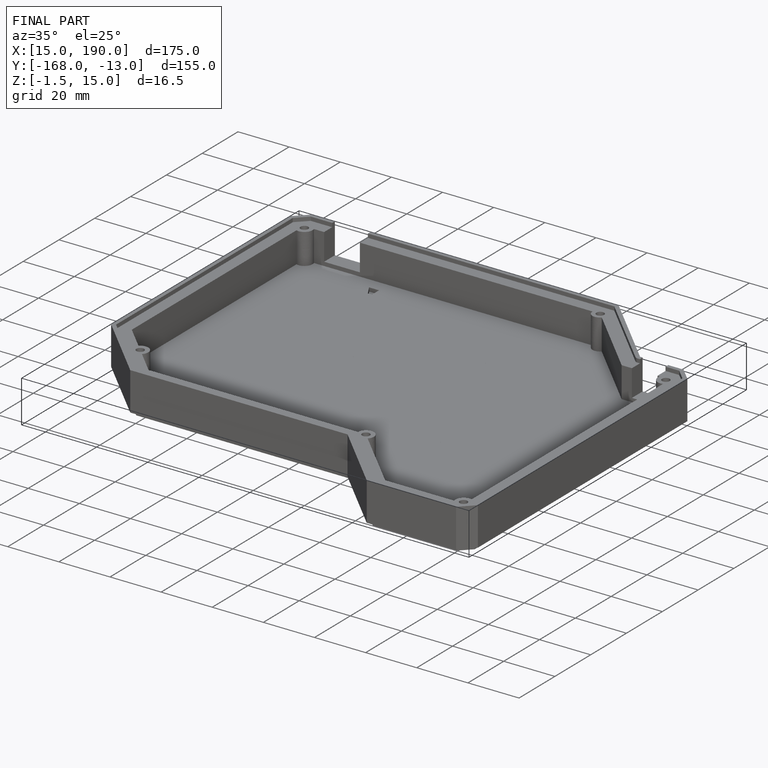
[diagram: finished part — iso view with bounding-box wireframe]
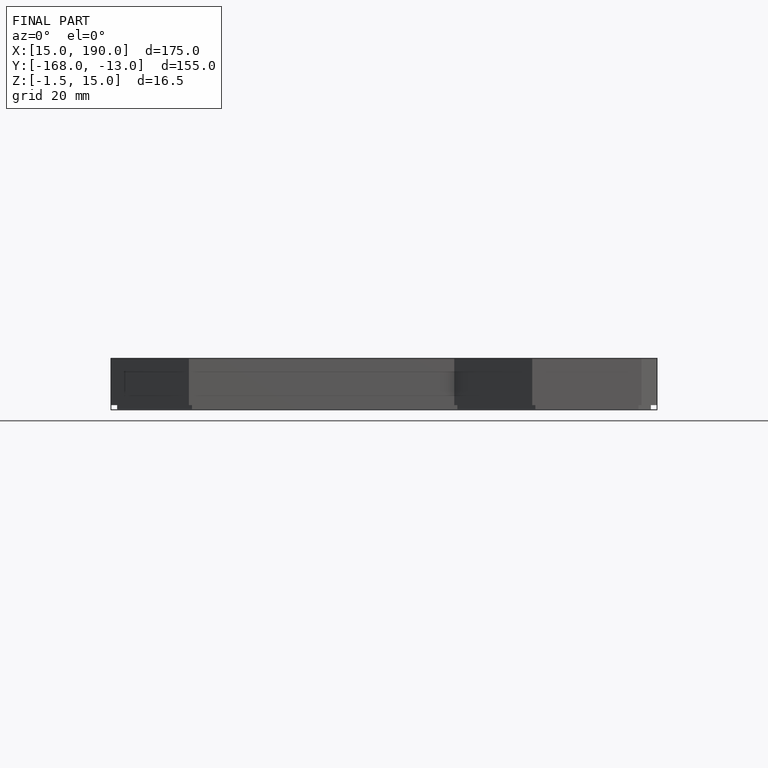
[diagram: finished part — front view with bounding-box wireframe]
